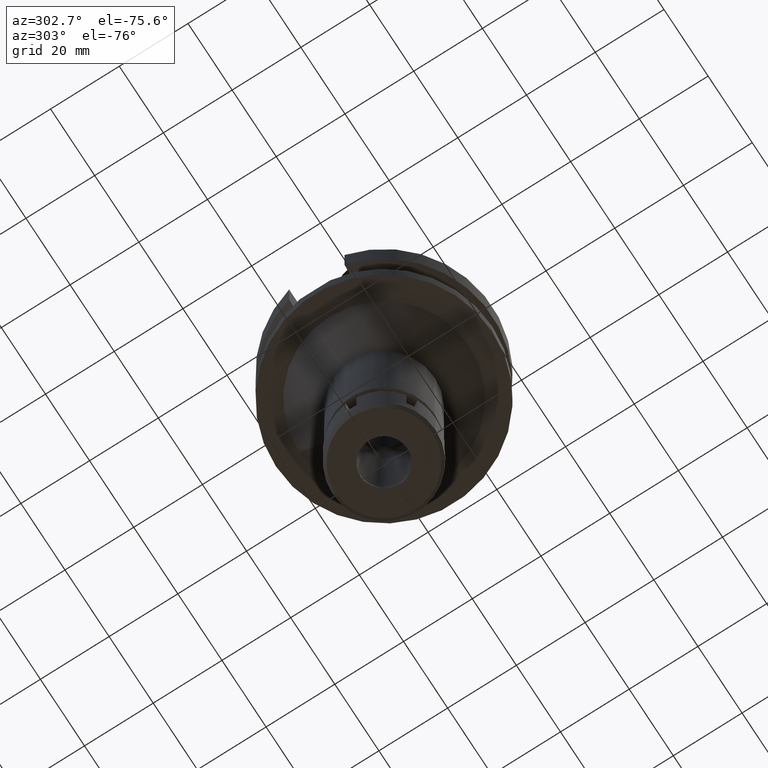
[diagram: clean part render]
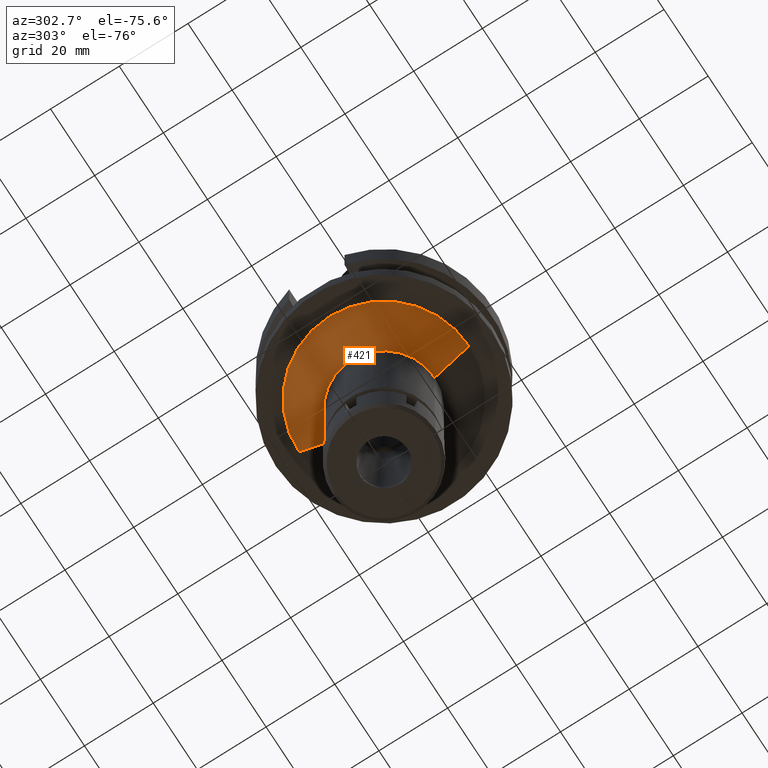
[diagram: same view with one face highlighted and labeled with its STEP entity id]
A machine part, auxiliary view. The second image highlights one B-rep face of the part: STEP entity #421.
In plain terms, the highlighted conical surface has half-angle 45 deg.
Its self-contained STEP definition (entity closure, byte-faithful):
#174 = DIRECTION ( 'NONE',  ( 0.0000000000000000000, 0.7071067811865474617, -0.7071067811865474617 ) ) ;
#234 = EDGE_CURVE ( 'NONE', #1252, #3253, #1519, .T. ) ;
#245 = FACE_OUTER_BOUND ( 'NONE', #812, .T. ) ;
#362 = CARTESIAN_POINT ( 'NONE',  ( 0.0000000000000000000, 14.75000000000000000, -37.00000000000000000 ) ) ;
#363 = AXIS2_PLACEMENT_3D ( 'NONE', #2640, #2339, #646 ) ;
#372 = CIRCLE ( 'NONE', #1447, 24.75000000000000000 ) ;
#421 = ADVANCED_FACE ( 'NONE', ( #245 ), #553, .T. ) ;
#553 = CONICAL_SURFACE ( 'NONE', #1025, 19.75000000000000000, 0.7853981633972997312 ) ;
#617 = EDGE_CURVE ( 'NONE', #1947, #733, #825, .T. ) ;
#646 = DIRECTION ( 'NONE',  ( 0.0000000000000000000, -1.000000000000000000, 0.0000000000000000000 ) ) ;
#724 = VECTOR ( 'NONE', #3606, 1000.000000000000114 ) ;
#733 = VERTEX_POINT ( 'NONE', #362 ) ;
#812 = EDGE_LOOP ( 'NONE', ( #1922, #1117, #1550, #1747 ) ) ;
#825 = LINE ( 'NONE', #2467, #724 ) ;
#1025 = AXIS2_PLACEMENT_3D ( 'NONE', #1372, #2480, #3621 ) ;
#1071 = CARTESIAN_POINT ( 'NONE',  ( 0.0000000000000000000, -14.75000000000000000, -37.00000000000000000 ) ) ;
#1117 = ORIENTED_EDGE ( 'NONE', *, *, #234, .F. ) ;
#1252 = VERTEX_POINT ( 'NONE', #1564 ) ;
#1344 = DIRECTION ( 'NONE',  ( 0.0000000000000000000, -1.000000000000000000, 0.0000000000000000000 ) ) ;
#1372 = CARTESIAN_POINT ( 'NONE',  ( 0.0000000000000000000, 0.0000000000000000000, -32.00000000000000000 ) ) ;
#1447 = AXIS2_PLACEMENT_3D ( 'NONE', #1646, #2166, #1344 ) ;
#1519 = LINE ( 'NONE', #2631, #3023 ) ;
#1550 = ORIENTED_EDGE ( 'NONE', *, *, #2954, .T. ) ;
#1564 = CARTESIAN_POINT ( 'NONE',  ( 0.0000000000000000000, -24.75000000000000000, -27.00000000000000000 ) ) ;
#1579 = CARTESIAN_POINT ( 'NONE',  ( 0.0000000000000000000, 24.75000000000000000, -27.00000000000000000 ) ) ;
#1646 = CARTESIAN_POINT ( 'NONE',  ( 0.0000000000000000000, 0.0000000000000000000, -27.00000000000000000 ) ) ;
#1747 = ORIENTED_EDGE ( 'NONE', *, *, #617, .T. ) ;
#1754 = EDGE_CURVE ( 'NONE', #3253, #733, #3089, .T. ) ;
#1922 = ORIENTED_EDGE ( 'NONE', *, *, #1754, .F. ) ;
#1947 = VERTEX_POINT ( 'NONE', #1579 ) ;
#2166 = DIRECTION ( 'NONE',  ( 0.0000000000000000000, 0.0000000000000000000, -1.000000000000000000 ) ) ;
#2339 = DIRECTION ( 'NONE',  ( 0.0000000000000000000, 0.0000000000000000000, -1.000000000000000000 ) ) ;
#2467 = CARTESIAN_POINT ( 'NONE',  ( 0.0000000000000000000, 24.75000000000000000, -27.00000000000000000 ) ) ;
#2480 = DIRECTION ( 'NONE',  ( 0.0000000000000000000, 0.0000000000000000000, 1.000000000000000000 ) ) ;
#2631 = CARTESIAN_POINT ( 'NONE',  ( 0.0000000000000000000, -24.75000000000000000, -27.00000000000000000 ) ) ;
#2640 = CARTESIAN_POINT ( 'NONE',  ( 0.0000000000000000000, 0.0000000000000000000, -37.00000000000000000 ) ) ;
#2954 = EDGE_CURVE ( 'NONE', #1252, #1947, #372, .T. ) ;
#3023 = VECTOR ( 'NONE', #174, 1000.000000000000114 ) ;
#3089 = CIRCLE ( 'NONE', #363, 14.75000000000000000 ) ;
#3253 = VERTEX_POINT ( 'NONE', #1071 ) ;
#3606 = DIRECTION ( 'NONE',  ( 0.0000000000000000000, -0.7071067811865474617, -0.7071067811865474617 ) ) ;
#3621 = DIRECTION ( 'NONE',  ( 0.0000000000000000000, 1.000000000000000000, 0.0000000000000000000 ) ) ;